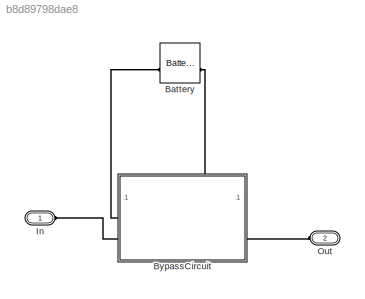
MODEL slx_b8d89798dae8
KIND model
CONFIG AbsTol = auto
CONFIG EnableMultiTasking = off
CONFIG FixedStep = auto
CONFIG MaxStep = auto
CONFIG MinStep = auto
CONFIG RelTol = 1e-3
CONFIG SampleTimeConstraint = Unconstrained
CONFIG SolverName = VariableStepAuto
CONFIG StartTime = 0.0
CONFIG StopTime = 10.0
BLOCK [Reference] Battery  REF=batteryecm_lib/Battery
  SourceBlock = batteryecm_lib/Battery
  SourceType = Battery
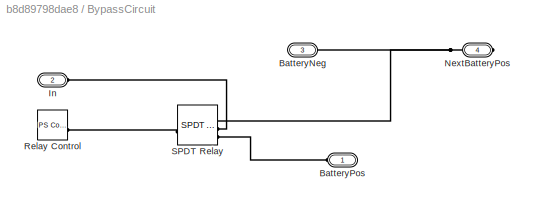
BLOCK [SubSystem] BypassCircuit
BLOCK [PMIOPort] BypassCircuit/BatteryNeg
  Port = 3
  Side = Right
BLOCK [PMIOPort] BypassCircuit/BatteryPos
  Side = Left
BLOCK [PMIOPort] BypassCircuit/In
  Port = 2
  Side = Left
BLOCK [PMIOPort] BypassCircuit/NextBatteryPos
  Port = 4
  Side = Right
BLOCK [Reference] BypassCircuit/Relay Control  REF=fl_lib/Physical Signals/Sources/PS Constant
  SourceBlock = fl_lib/Physical Signals/Sources/PS Constant
  SourceType = PS Constant
BLOCK [Reference] BypassCircuit/SPDT Relay  REF=ee_lib/Switches & Breakers/Relays/SPDT Relay
  SourceBlock = ee_lib/Switches & Breakers/Relays/SPDT Relay
  SourceType = SPDT Relay
BLOCK [PMIOPort] In
  Side = Left
BLOCK [PMIOPort] Out
  NameLocation = top
  Port = 2
  Side = Left
PLINE Battery:LConn1 -- BypassCircuit:LConn1
PLINE Battery:RConn1 -- BypassCircuit:RConn1
PNET net1: BypassCircuit/BatteryNeg:RConn1 -- BypassCircuit/NextBatteryPos:RConn1 -- BypassCircuit/SPDT Relay:RConn1
PLINE BypassCircuit/BatteryPos:RConn1 -- BypassCircuit/SPDT Relay:RConn3
PLINE BypassCircuit/In:RConn1 -- BypassCircuit/SPDT Relay:RConn2
PLINE BypassCircuit/Relay Control:RConn1 -- BypassCircuit/SPDT Relay:LConn1
PLINE BypassCircuit:LConn2 -- In:RConn1
PLINE BypassCircuit:RConn2 -- Out:RConn1
note: PNET lines group multi-terminal physical nets as a canonical sorted terminal list (undirected conserving connections); 2-terminal nets keep the pairwise PLINE form
